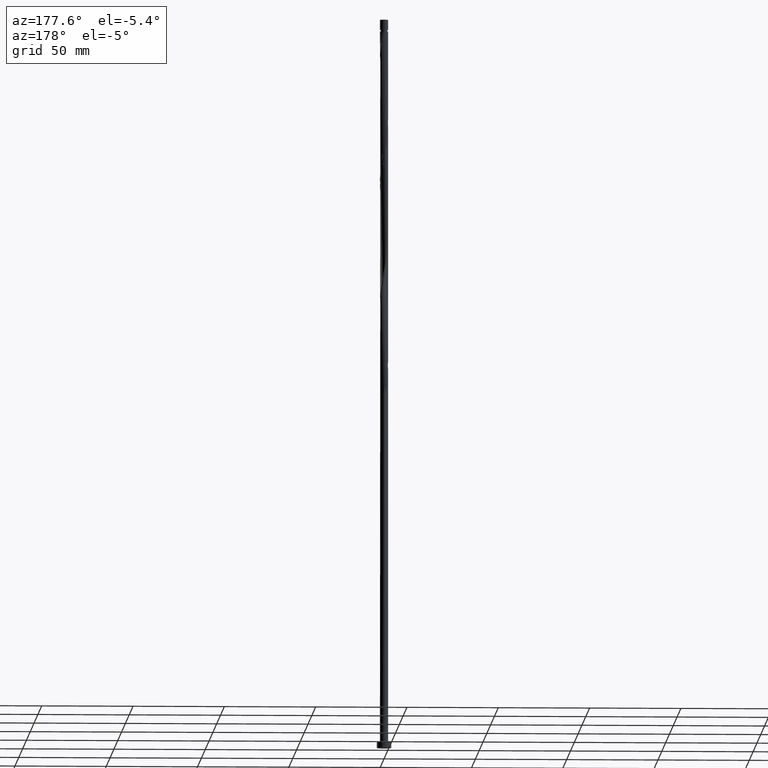
[diagram: clean part render]
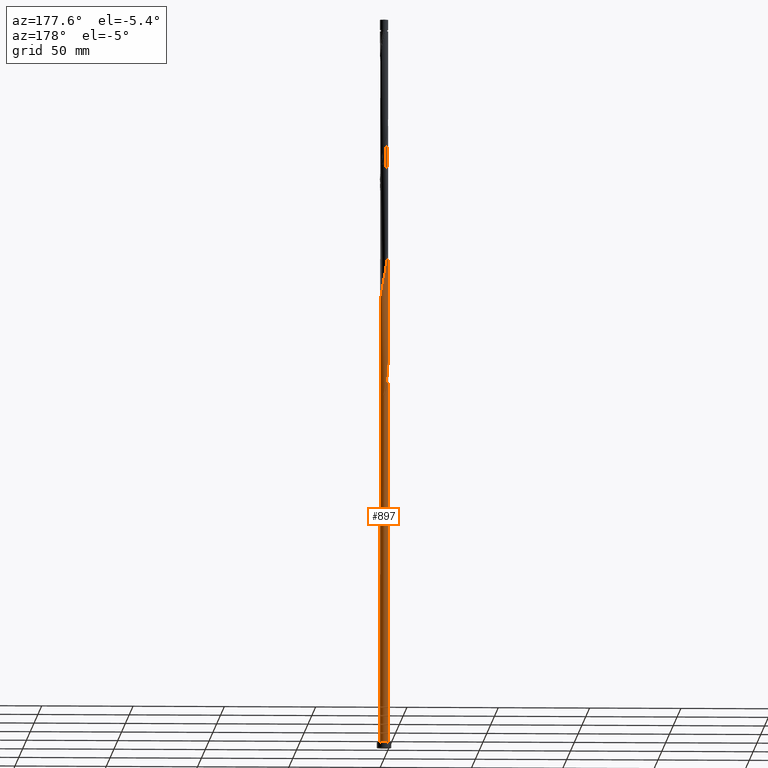
[diagram: same view with one face highlighted and labeled with its STEP entity id]
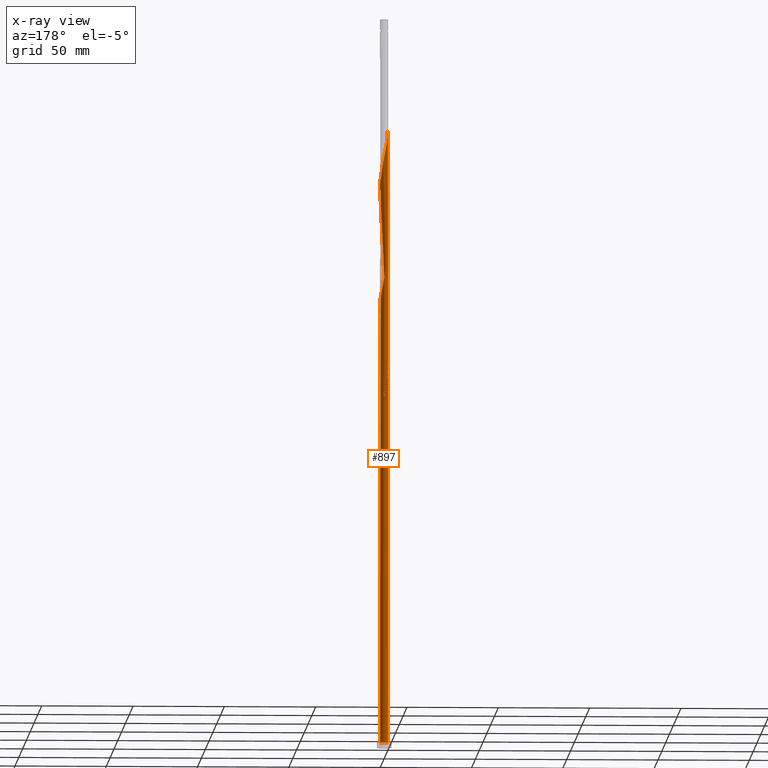
[diagram: x-ray of the same camera — body ghosted, the highlighted face saturated]
A machine part, auxiliary view. The second image highlights one B-rep face of the part: STEP entity #897.
The next image is the same camera in x-ray: the body ghosted, the highlighted face saturated — about 0% of this face is hidden behind the body in this view.
In plain terms, the highlighted cylindrical surface (bore or boss wall) has radius 2.25 mm, axis along (-0, -0, -1).
Its self-contained STEP definition (entity closure, byte-faithful):
#10 = VERTEX_POINT ( 'NONE', #1756 ) ;
#15 = VECTOR ( 'NONE', #1606, 1000.000000000000000 ) ;
#27 = CARTESIAN_POINT ( 'NONE',  ( 2.208580602260827863, -0.4905065299647383137, 239.1654255024255065 ) ) ;
#36 = CARTESIAN_POINT ( 'NONE',  ( -1.529081416802029691, -1.667433642881045008, 283.6098699468700488 ) ) ;
#44 = CARTESIAN_POINT ( 'NONE',  ( -2.146118750789926644, -0.6757768178236830403, 211.3876477246477634 ) ) ;
#46 = CARTESIAN_POINT ( 'NONE',  ( -0.4878194838710451786, -2.196481766634041044, 289.1654255024256486 ) ) ;
#61 = CARTESIAN_POINT ( 'NONE',  ( 0.7186790202281185813, 2.145209872834078713, 254.7209810579810778 ) ) ;
#65 = CYLINDRICAL_SURFACE ( 'NONE', #919, 2.250000000000000000 ) ;
#69 = CARTESIAN_POINT ( 'NONE',  ( -2.146118750789926644, -0.6757768178236830403, 278.0543143913143922 ) ) ;
#76 = CARTESIAN_POINT ( 'NONE',  ( -0.02048521978840372668, -2.249906743794114927, 224.7209810579811062 ) ) ;
#122 = CARTESIAN_POINT ( 'NONE',  ( 0.9338336956909291109, 2.047059996383163494, 320.2765366135366207 ) ) ;
#134 = DIRECTION ( 'NONE',  ( 0.000000000000000000, 0.000000000000000000, 1.000000000000000000 ) ) ;
#139 = CARTESIAN_POINT ( 'NONE',  ( -0.8964053367179171117, 2.063724175441973951, 329.1654255024255349 ) ) ;
#142 = CIRCLE ( 'NONE', #1338, 2.250000000000000000 ) ;
#150 = CARTESIAN_POINT ( 'NONE',  ( -1.658299266918881631, 1.520704948810359225, 333.6098699468700488 ) ) ;
#159 = CARTESIAN_POINT ( 'NONE',  ( -2.075091745142291444, 0.9013429879147865087, 208.0543143913144206 ) ) ;
#164 = CARTESIAN_POINT ( 'NONE',  ( 1.842346267189367559, 1.313082314401597728, 248.0543143913144490 ) ) ;
#181 = CARTESIAN_POINT ( 'NONE',  ( 1.685713841995699624, 1.490257978641320147, 249.1654255024255633 ) ) ;
#188 = EDGE_CURVE ( 'NONE', #1044, #1893, #1340, .T. ) ;
#191 = CARTESIAN_POINT ( 'NONE',  ( -0.8964053367179171117, 2.063724175441973951, 262.4987588357589061 ) ) ;
#205 = DIRECTION ( 'NONE',  ( -0.000000000000000000, -0.000000000000000000, -1.000000000000000000 ) ) ;
#207 = CARTESIAN_POINT ( 'NONE',  ( -2.075091745142295441, -0.9013429879147869528, 212.4987588357588493 ) ) ;
#210 = CARTESIAN_POINT ( 'NONE',  ( -1.113311487977034275, 1.969508178038165358, 263.6098699468699920 ) ) ;
#218 = CARTESIAN_POINT ( 'NONE',  ( -1.685713841995698958, -1.490257978641321257, 215.8320921690922205 ) ) ;
#221 = CARTESIAN_POINT ( 'NONE',  ( -1.842346267189367337, -1.313082314401598394, 281.3876477246477634 ) ) ;
#223 = CARTESIAN_POINT ( 'NONE',  ( -1.498466736209439043, 1.694999225101500251, 199.1654255024255633 ) ) ;
#236 = EDGE_CURVE ( 'NONE', #10, #1146, #356, .T. ) ;
#251 = CARTESIAN_POINT ( 'NONE',  ( -1.529081416802026583, 1.667433642881041900, 203.6098699468699920 ) ) ;
#256 = CARTESIAN_POINT ( 'NONE',  ( 0.8964053367179166676, -2.063724175441973951, 295.8320921690922205 ) ) ;
#287 = CARTESIAN_POINT ( 'NONE',  ( 2.146118750789926644, 0.6757768178236822632, 311.3876477246478203 ) ) ;
#290 = CARTESIAN_POINT ( 'NONE',  ( 1.529081416802029691, 1.667433642881044786, 250.2765366135366492 ) ) ;
#297 = CARTESIAN_POINT ( 'NONE',  ( 0.7186790202281185813, 2.145209872834078713, 321.3876477246478203 ) ) ;
#302 = CARTESIAN_POINT ( 'NONE',  ( -1.685713841995694739, 1.490257978641319481, 204.7209810579811347 ) ) ;
#306 = VERTEX_POINT ( 'NONE', #574 ) ;
#308 = CARTESIAN_POINT ( 'NONE',  ( -2.146118750789922203, 0.6757768178236830403, 209.1654255024255349 ) ) ;
#312 = CARTESIAN_POINT ( 'NONE',  ( 2.239722807784165326, 0.2148062948133293015, 242.4987588357588493 ) ) ;
#346 = CARTESIAN_POINT ( 'NONE',  ( -1.148988371153740085, -1.948910119932248275, 285.8320921690922205 ) ) ;
#356 = CIRCLE ( 'NONE', #1408, 2.250000000000000000 ) ;
#366 = CARTESIAN_POINT ( 'NONE',  ( -2.235440230695801667, 0.2555522940353270878, 273.6098699468699920 ) ) ;
#370 = CARTESIAN_POINT ( 'NONE',  ( 0.4477443466979825759, -2.205000000000003180, 226.9432032802033348 ) ) ;
#373 = CARTESIAN_POINT ( 'NONE',  ( -1.938233786377428602, 1.142694092635922365, 269.1654255024255349 ) ) ;
#375 = CARTESIAN_POINT ( 'NONE',  ( -1.938233786377428602, 1.142694092635922365, 335.8320921690922773 ) ) ;
#376 = CARTESIAN_POINT ( 'NONE',  ( -2.250000000000003109, 0.1281909092544755158, 207.5455020606305538 ) ) ;
#378 =( BOUNDED_CURVE ( )  B_SPLINE_CURVE ( 2, ( #1337, #1480, #1513, #1326, #44, #207, #634, #1789, #218, #1202, #777, #1801, #1648, #787, #1359, #657, #76, #512, #370, #434, #1152, #998, #453, #1012, #987, #1587, #1310, #1881, #889, #27, #853, #610, #312, #1761, #1457, #1772, #1473, #164, #181, #290, #1030, #1433, #1889, #61, #1220, #1206, #1652, #1823, #481, #1484, #191, #210, #1069, #782, #515, #1525, #373, #1181, #1076, #760, #366, #1516, #751, #1793, #69, #1319, #1667, #221, #934, #36, #488, #346, #908, #1821, #46, #659, #1680, #1387, #1861, #1074, #256, #1398, #1111, #1710, #1840, #1564, #1535, #941, #1378, #668, #688, #1718, #1878, #579, #287, #570, #840, #422, #1429, #588, #1007, #1139, #122, #297, #975, #870, #1576, #732, #431, #1160, #139, #1279, #964, #1441, #150, #1825, #375, #1104, #903, #1357, #1176, #640, #485 ),
 .UNSPECIFIED., .F., .T. ) 
 B_SPLINE_CURVE_WITH_KNOTS ( ( 3, 2, 2, 2, 2, 2, 2, 2, 2, 2, 2, 2, 2, 2, 2, 2, 2, 2, 2, 2, 2, 2, 2, 2, 2, 2, 2, 2, 2, 2, 2, 2, 2, 2, 2, 2, 2, 2, 2, 2, 2, 2, 2, 2, 2, 2, 2, 2, 2, 2, 2, 2, 2, 2, 2, 2, 2, 2, 2, 2, 2, 3 ),
 ( 0.05452860127731134349, 0.05833333333333334814, 0.06666666666666665186, 0.07499999999999995559, 0.08333333333333337034, 0.09166666666666667407, 0.09999999999999997780, 0.1083333333333332815, 0.1166666666666666963, 0.1250000000000000000, 0.1333333333333333037, 0.1416666666666667185, 0.1500000000000000222, 0.1583333333333333259, 0.1666666666666666297, 0.1750000000000000444, 0.1833333333333333481, 0.1916666666666666519, 0.1999999999999999556, 0.2083333333333333703, 0.2166666666666666741, 0.2249999999999999778, 0.2333333333333332815, 0.2416666666666666963, 0.2500000000000000000, 0.2583333333333333037, 0.2666666666666667185, 0.2750000000000000222, 0.2833333333333333259, 0.2916666666666666297, 0.3000000000000000444, 0.3083333333333333481, 0.3166666666666666519, 0.3249999999999999556, 0.3333333333333333703, 0.3416666666666666741, 0.3499999999999999778, 0.3583333333333332815, 0.3666666666666666963, 0.3750000000000000000, 0.3833333333333333037, 0.3916666666666667185, 0.4000000000000000222, 0.4083333333333333259, 0.4166666666666666297, 0.4250000000000000444, 0.4333333333333333481, 0.4416666666666666519, 0.4499999999999999556, 0.4583333333333333703, 0.4666666666666666741, 0.4749999999999999778, 0.4833333333333332815, 0.4916666666666666963, 0.5000000000000000000, 0.5083333333333333037, 0.5166666666666666075, 0.5250000000000000222, 0.5333333333333333259, 0.5416666666666667407, 0.5500000000000000444, 0.5545286012773110729 ),
 .UNSPECIFIED. ) 
 CURVE ( )  GEOMETRIC_REPRESENTATION_ITEM ( )  RATIONAL_B_SPLINE_CURVE ( ( 0.9066196499552687804, 0.9068171577856813936, 0.9090909090909804480, 0.9041108139712286107, 0.9090909090909804480, 0.9041108139712286107, 0.9090909090909804480, 0.9041108139712286107, 0.9090909090909804480, 0.9041108139712286107, 0.9090909090909804480, 0.9041108139712286107, 0.9090909090909804480, 0.9041108139712286107, 0.9090909090909804480, 0.9041108139712286107, 0.9090909090909804480, 0.9041108139712286107, 0.9090909090909804480, 0.9041108139712286107, 0.9090909090909804480, 0.9041108139712286107, 0.9090909090909804480, 0.9041108139712286107, 0.9090909090909804480, 0.9041108139712286107, 0.9090909090909804480, 0.9041108139712286107, 0.9090909090909804480, 0.9041108139712286107, 0.9090909090909804480, 0.9041108139712286107, 0.9090909090909804480, 0.9041108139712286107, 0.9090909090909804480, 0.9041108139712286107, 0.9090909090909804480, 0.9041108139712286107, 0.9090909090909804480, 0.9041108139712286107, 0.9090909090909804480, 0.9041108139712286107, 0.9090909090909804480, 0.9041108139712286107, 0.9090909090909804480, 0.9041108139712286107, 0.9090909090909804480, 0.9041108139712286107, 0.9090909090909804480, 0.9041108139712286107, 0.9090909090909804480, 0.9041108139712286107, 0.9090909090909804480, 0.9041108139712286107, 0.9090909090909804480, 0.9041108139712286107, 0.9090909090909804480, 0.9041108139712286107, 0.9090909090909804480, 0.9041108139712286107, 0.9090909090909804480, 0.9041108139712286107, 0.9090909090909804480, 0.9041108139712286107, 0.9090909090909804480, 0.9041108139712286107, 0.9090909090909804480, 0.9041108139712286107, 0.9090909090909804480, 0.9041108139712286107, 0.9090909090909804480, 0.9041108139712286107, 0.9090909090909804480, 0.9041108139712286107, 0.9090909090909804480, 0.9041108139712286107, 0.9090909090909804480, 0.9041108139712286107, 0.9090909090909804480, 0.9041108139712286107, 0.9090909090909804480, 0.9041108139712286107, 0.9090909090909804480, 0.9041108139712286107, 0.9090909090909804480, 0.9041108139712286107, 0.9090909090909804480, 0.9041108139712286107, 0.9090909090909804480, 0.9041108139712286107, 0.9090909090909804480, 0.9041108139712286107, 0.9090909090909804480, 0.9041108139712286107, 0.9090909090909804480, 0.9041108139712286107, 0.9090909090909804480, 0.9041108139712286107, 0.9090909090909804480, 0.9041108139712286107, 0.9090909090909804480, 0.9041108139712286107, 0.9090909090909804480, 0.9041108139712286107, 0.9090909090909804480, 0.9041108139712286107, 0.9090909090909804480, 0.9041108139712286107, 0.9090909090909804480, 0.9041108139712286107, 0.9090909090909804480, 0.9041108139712286107, 0.9090909090909804480, 0.9041108139712286107, 0.9090909090909804480, 0.9041108139712286107, 0.9090909090909804480, 0.9041108139712286107, 0.9090909090909804480, 0.9041108139712286107, 0.9090909090909804480, 0.9063845652765278871, 0.9066196499552687804 ) ) 
 REPRESENTATION_ITEM ( '' )  );
#404 = EDGE_CURVE ( 'NONE', #1044, #606, #537, .T. ) ;
#422 = CARTESIAN_POINT ( 'NONE',  ( 1.842346267189367559, 1.313082314401597728, 314.7209810579810210 ) ) ;
#431 = CARTESIAN_POINT ( 'NONE',  ( -0.4477443466979822984, 2.205000000000003180, 326.9432032802033632 ) ) ;
#434 = CARTESIAN_POINT ( 'NONE',  ( 0.6794991854587989488, -2.157940172845781657, 228.0543143913144206 ) ) ;
#437 = CARTESIAN_POINT ( 'NONE',  ( -0.4878194838710431802, 2.196481766634038379, 198.0543143913144206 ) ) ;
#453 = CARTESIAN_POINT ( 'NONE',  ( 1.305889112093235882, -1.832253701569833249, 231.3876477246477634 ) ) ;
#456 = CARTESIAN_POINT ( 'NONE',  ( -2.250000000000003109, 2.234788105389345572E-15, 208.1510933700151043 ) ) ;
#481 = CARTESIAN_POINT ( 'NONE',  ( -0.4477443466979822984, 2.205000000000003180, 260.2765366135367344 ) ) ;
#485 = CARTESIAN_POINT ( 'NONE',  ( -2.250000000000002665, 7.773176018745549002E-16, 341.4844267033483902 ) ) ;
#488 = CARTESIAN_POINT ( 'NONE',  ( -1.339034893977885110, -1.808171881406646087, 284.7209810579810210 ) ) ;
#499 = CARTESIAN_POINT ( 'NONE',  ( -0.8964053367179171117, 2.063724175441973951, 195.8320921690921921 ) ) ;
#512 = CARTESIAN_POINT ( 'NONE',  ( 0.2159895079371652871, -2.252059827154224259, 225.8320921690921637 ) ) ;
#515 = CARTESIAN_POINT ( 'NONE',  ( -1.658299266918881631, 1.520704948810359225, 266.9432032802032495 ) ) ;
#537 = CIRCLE ( 'NONE', #1400, 2.250000000000000000 ) ;
#570 = CARTESIAN_POINT ( 'NONE',  ( 2.075091745142295885, 0.9013429879147859536, 312.4987588357588493 ) ) ;
#574 = CARTESIAN_POINT ( 'NONE',  ( -2.250000000000002665, 7.773176018745549002E-16, 341.4844267033483902 ) ) ;
#579 = CARTESIAN_POINT ( 'NONE',  ( 2.217145756437556514, 0.4502106477325789058, 310.2765366135366207 ) ) ;
#588 = CARTESIAN_POINT ( 'NONE',  ( 1.529081416802029691, 1.667433642881044786, 316.9432032802033063 ) ) ;
#606 = VERTEX_POINT ( 'NONE', #999 ) ;
#610 = CARTESIAN_POINT ( 'NONE',  ( 2.262299859130773694, -0.02059805810591844311, 241.3876477246477350 ) ) ;
#621 = DIRECTION ( 'NONE',  ( 1.000000000000000000, 0.000000000000000000, 0.000000000000000000 ) ) ;
#622 = ORIENTED_EDGE ( 'NONE', *, *, #1690, .F. ) ;
#632 = CARTESIAN_POINT ( 'NONE',  ( -1.818131797628323332, 1.346410672519218199, 201.3876477246477634 ) ) ;
#634 = CARTESIAN_POINT ( 'NONE',  ( -1.958719006165831056, -1.107212651158192784, 213.6098699468699920 ) ) ;
#640 = CARTESIAN_POINT ( 'NONE',  ( -2.250000000000002220, 0.1281909092544831485, 340.8788353939638114 ) ) ;
#657 = CARTESIAN_POINT ( 'NONE',  ( -0.2569599475139717204, -2.247753660434005152, 223.6098699468699351 ) ) ;
#659 = CARTESIAN_POINT ( 'NONE',  ( -0.2569599475139717204, -2.247753660434005152, 290.2765366135365639 ) ) ;
#668 = CARTESIAN_POINT ( 'NONE',  ( 2.208580602260827863, -0.4905065299647383137, 305.8320921690921068 ) ) ;
#675 = EDGE_CURVE ( 'NONE', #306, #1268, #1755, .T. ) ;
#688 = CARTESIAN_POINT ( 'NONE',  ( 2.235440230695801667, -0.2555522940353273098, 306.9432032802033632 ) ) ;
#704 = CARTESIAN_POINT ( 'NONE',  ( -1.339034893977881335, 1.808171881406644088, 202.4987588357588493 ) ) ;
#732 = CARTESIAN_POINT ( 'NONE',  ( -0.2159895079371639826, 2.252059827154224259, 325.8320921690922773 ) ) ;
#751 = CARTESIAN_POINT ( 'NONE',  ( -2.239722807784164438, -0.2148062948133304950, 275.8320921690922773 ) ) ;
#760 = CARTESIAN_POINT ( 'NONE',  ( -2.208580602260827863, 0.4905065299647369814, 272.4987588357588493 ) ) ;
#777 = CARTESIAN_POINT ( 'NONE',  ( -1.339034893977885110, -1.808171881406646087, 218.0543143913144206 ) ) ;
#782 = CARTESIAN_POINT ( 'NONE',  ( -1.498466736209439043, 1.694999225101500251, 265.8320921690922773 ) ) ;
#787 = CARTESIAN_POINT ( 'NONE',  ( -0.7186790202281182482, -2.145209872834078713, 221.3876477246477918 ) ) ;
#817 = CARTESIAN_POINT ( 'NONE',  ( 0.2159895079371659254, 2.252059827154219818, 194.7209810579810778 ) ) ;
#823 = CARTESIAN_POINT ( 'NONE',  ( -1.958719006165827281, 1.107212651158191452, 206.9432032802033632 ) ) ;
#840 = CARTESIAN_POINT ( 'NONE',  ( 1.958719006165831056, 1.107212651158192784, 313.6098699468699351 ) ) ;
#848 = ORIENTED_EDGE ( 'NONE', *, *, #1505, .F. ) ;
#853 = CARTESIAN_POINT ( 'NONE',  ( 2.235440230695801667, -0.2555522940353273098, 240.2765366135366776 ) ) ;
#855 = CARTESIAN_POINT ( 'NONE',  ( 0.4477443466979830200, 2.204999999999999183, 193.6098699468699635 ) ) ;
#870 = CARTESIAN_POINT ( 'NONE',  ( 0.2569599475139721645, 2.247753660434005152, 323.6098699468699920 ) ) ;
#875 = CARTESIAN_POINT ( 'NONE',  ( 0.000000000000000000, 0.000000000000000000, 193.6098699468700204 ) ) ;
#885 = ORIENTED_EDGE ( 'NONE', *, *, #675, .F. ) ;
#889 = CARTESIAN_POINT ( 'NONE',  ( 2.133458188693681201, -0.7147420213586823667, 238.0543143913144206 ) ) ;
#897 = ADVANCED_FACE ( 'NONE', ( #1498 ), #65, .T. ) ;
#902 = EDGE_LOOP ( 'NONE', ( #885, #1599, #1238, #1438, #1323, #848, #1258, #1385, #622 ) ) ;
#903 = CARTESIAN_POINT ( 'NONE',  ( -2.133458188693681201, 0.7147420213586817006, 338.0543143913144490 ) ) ;
#904 = DIRECTION ( 'NONE',  ( -0.000000000000000000, -0.000000000000000000, -1.000000000000000000 ) ) ;
#908 = CARTESIAN_POINT ( 'NONE',  ( -0.9338336956909288888, -2.047059996383163494, 286.9432032802031927 ) ) ;
#912 = CARTESIAN_POINT ( 'NONE',  ( -1.305889112093236770, 1.832253701569832804, 198.0543143913143922 ) ) ;
#919 = AXIS2_PLACEMENT_3D ( 'NONE', #1529, #205, #1215 ) ;
#930 = CARTESIAN_POINT ( 'NONE',  ( -0.6794991854587996150, 2.157940172845781213, 194.7209810579810778 ) ) ;
#934 = CARTESIAN_POINT ( 'NONE',  ( -1.685713841995698958, -1.490257978641321257, 282.4987588357588493 ) ) ;
#941 = CARTESIAN_POINT ( 'NONE',  ( 2.058335775126532319, -0.9389775127526261977, 303.6098699468699351 ) ) ;
#953 = CARTESIAN_POINT ( 'NONE',  ( -1.148988371153736976, 1.948910119932245166, 201.3876477246477634 ) ) ;
#964 = CARTESIAN_POINT ( 'NONE',  ( -1.305889112093236770, 1.832253701569832804, 331.3876477246478203 ) ) ;
#970 = CARTESIAN_POINT ( 'NONE',  ( -0.2569599475139706102, 2.247753660434001155, 196.9432032802033063 ) ) ;
#975 = CARTESIAN_POINT ( 'NONE',  ( 0.4878194838710463443, 2.196481766634041044, 322.4987588357588493 ) ) ;
#987 = CARTESIAN_POINT ( 'NONE',  ( 1.658299266918881409, -1.520704948810359447, 233.6098699468699920 ) ) ;
#989 = CARTESIAN_POINT ( 'NONE',  ( -0.02048521978840224869, 2.249906743794110930, 195.8320921690922205 ) ) ;
#998 = CARTESIAN_POINT ( 'NONE',  ( 1.113311487977034053, -1.969508178038165802, 230.2765366135366492 ) ) ;
#999 = CARTESIAN_POINT ( 'NONE',  ( 0.4477443466979829645, 2.204999999999999183, 193.6098699468699635 ) ) ;
#1005 = CARTESIAN_POINT ( 'NONE',  ( -2.239722807784161773, 0.2148062948133313277, 211.3876477246477634 ) ) ;
#1007 = CARTESIAN_POINT ( 'NONE',  ( 1.339034893977885332, 1.808171881406645642, 318.0543143913143922 ) ) ;
#1012 = CARTESIAN_POINT ( 'NONE',  ( 1.498466736209437933, -1.694999225101500251, 232.4987588357588493 ) ) ;
#1013 = CARTESIAN_POINT ( 'NONE',  ( -2.250000000000000000, 0.000000000000000000, 400.0000000000000000 ) ) ;
#1030 = CARTESIAN_POINT ( 'NONE',  ( 1.339034893977885332, 1.808171881406645642, 251.3876477246477918 ) ) ;
#1044 = VERTEX_POINT ( 'NONE', #1570 ) ;
#1061 = CARTESIAN_POINT ( 'NONE',  ( -2.058335775126532319, 0.9389775127526257537, 203.6098699468699920 ) ) ;
#1069 = CARTESIAN_POINT ( 'NONE',  ( -1.305889112093236770, 1.832253701569832804, 264.7209810579811915 ) ) ;
#1074 = CARTESIAN_POINT ( 'NONE',  ( 0.6794991854587989488, -2.157940172845781657, 294.7209810579811347 ) ) ;
#1076 = CARTESIAN_POINT ( 'NONE',  ( -2.133458188693681201, 0.7147420213586817006, 271.3876477246477066 ) ) ;
#1078 = CARTESIAN_POINT ( 'NONE',  ( -2.208580602260827863, 0.4905065299647369814, 205.8320921690922205 ) ) ;
#1104 = CARTESIAN_POINT ( 'NONE',  ( -2.058335775126532319, 0.9389775127526257537, 336.9432032802032495 ) ) ;
#1111 = CARTESIAN_POINT ( 'NONE',  ( 1.305889112093235882, -1.832253701569833249, 298.0543143913143922 ) ) ;
#1133 = CARTESIAN_POINT ( 'NONE',  ( -2.250000000000003109, 2.234788105389345572E-15, 208.1510933700150758 ) ) ;
#1139 = CARTESIAN_POINT ( 'NONE',  ( 1.148988371153740751, 1.948910119932247387, 319.1654255024255349 ) ) ;
#1146 = VERTEX_POINT ( 'NONE', #1819 ) ;
#1152 = CARTESIAN_POINT ( 'NONE',  ( 0.8964053367179166676, -2.063724175441973951, 229.1654255024255349 ) ) ;
#1160 = CARTESIAN_POINT ( 'NONE',  ( -0.6794991854587996150, 2.157940172845781213, 328.0543143913143354 ) ) ;
#1176 = CARTESIAN_POINT ( 'NONE',  ( -2.235440230695801667, 0.2555522940353270878, 340.2765366135365639 ) ) ;
#1181 = CARTESIAN_POINT ( 'NONE',  ( -2.058335775126532319, 0.9389775127526257537, 270.2765366135366776 ) ) ;
#1184 = EDGE_CURVE ( 'NONE', #1893, #306, #378, .T. ) ;
#1197 = CARTESIAN_POINT ( 'NONE',  ( -1.658299266918881631, 1.520704948810359225, 200.2765366135367060 ) ) ;
#1202 = CARTESIAN_POINT ( 'NONE',  ( -1.529081416802029691, -1.667433642881045008, 216.9432032802033063 ) ) ;
#1206 = CARTESIAN_POINT ( 'NONE',  ( 0.2569599475139721645, 2.247753660434005152, 256.9432032802033063 ) ) ;
#1209 = CARTESIAN_POINT ( 'NONE',  ( -2.250000000000000000, 0.000000000000000000, 400.0000000000000000 ) ) ;
#1215 = DIRECTION ( 'NONE',  ( -1.000000000000000000, 0.000000000000000000, 0.000000000000000000 ) ) ;
#1220 = CARTESIAN_POINT ( 'NONE',  ( 0.4878194838710463443, 2.196481766634041044, 255.8320921690921921 ) ) ;
#1238 = ORIENTED_EDGE ( 'NONE', *, *, #1505, .T. ) ;
#1258 = ORIENTED_EDGE ( 'NONE', *, *, #188, .F. ) ;
#1268 = VERTEX_POINT ( 'NONE', #1658 ) ;
#1279 = CARTESIAN_POINT ( 'NONE',  ( -1.113311487977034275, 1.969508178038165358, 330.2765366135366207 ) ) ;
#1302 = DIRECTION ( 'NONE',  ( -2.054325274013051950E-29, -3.083952846180992213E-14, -1.000000000000000000 ) ) ;
#1310 = CARTESIAN_POINT ( 'NONE',  ( 1.938233786377428158, -1.142694092635922587, 235.8320921690922489 ) ) ;
#1319 = CARTESIAN_POINT ( 'NONE',  ( -2.075091745142295441, -0.9013429879147869528, 279.1654255024255349 ) ) ;
#1323 = ORIENTED_EDGE ( 'NONE', *, *, #236, .T. ) ;
#1325 =( BOUNDED_CURVE ( )  B_SPLINE_CURVE ( 2, ( #1894, #1749, #1005, #1451, #308, #159, #823, #1815, #302, #251, #704, #953, #1416, #1734, #437, #970, #989, #817, #855 ),
 .UNSPECIFIED., .F., .T. ) 
 B_SPLINE_CURVE_WITH_KNOTS ( ( 3, 2, 2, 2, 2, 2, 2, 2, 2, 3 ),
 ( 0.9295286012773114059, 0.9333333333333333481, 0.9416666666666666519, 0.9499999999999999556, 0.9583333333333333703, 0.9666666666666666741, 0.9749999999999999778, 0.9833333333333332815, 0.9916666666666666963, 1.000000000000000000 ),
 .UNSPECIFIED. ) 
 CURVE ( )  GEOMETRIC_REPRESENTATION_ITEM ( )  RATIONAL_B_SPLINE_CURVE ( ( 0.9066196499552608978, 0.9068171577856736221, 0.9090909090909725654, 0.9041108139712207281, 0.9090909090909725654, 0.9041108139712207281, 0.9090909090909725654, 0.9041108139712207281, 0.9090909090909725654, 0.9041108139712207281, 0.9090909090909725654, 0.9041108139712207281, 0.9090909090909725654, 0.9041108139712207281, 0.9090909090909725654, 0.9041108139712207281, 0.9090909090909725654, 0.9041108139712207281, 0.9090909090909725654 ) ) 
 REPRESENTATION_ITEM ( '' )  );
#1326 = CARTESIAN_POINT ( 'NONE',  ( -2.217145756437556514, -0.4502106477325790723, 210.2765366135366207 ) ) ;
#1337 = CARTESIAN_POINT ( 'NONE',  ( -2.250000000000003109, 2.234788105389345572E-15, 208.1510933700150758 ) ) ;
#1338 = AXIS2_PLACEMENT_3D ( 'NONE', #1628, #1477, #621 ) ;
#1340 =( BOUNDED_CURVE ( )  B_SPLINE_CURVE ( 2, ( #1809, #930, #499, #1520, #912, #223, #1197, #632, #1497, #1061, #1364, #1078, #1675, #376, #1133 ),
 .UNSPECIFIED., .F., .T. ) 
 B_SPLINE_CURVE_WITH_KNOTS ( ( 3, 2, 2, 2, 2, 2, 2, 3 ),
 ( 0.000000000000000000, 0.008333333333333303727, 0.01666666666666671848, 0.02500000000000002220, 0.03333333333333332593, 0.04166666666666662966, 0.05000000000000004441, 0.05452860127731134349 ),
 .UNSPECIFIED. ) 
 CURVE ( )  GEOMETRIC_REPRESENTATION_ITEM ( )  RATIONAL_B_SPLINE_CURVE ( ( 0.9090909090909804480, 0.9041108139712286107, 0.9090909090909804480, 0.9041108139712286107, 0.9090909090909804480, 0.9041108139712286107, 0.9090909090909804480, 0.9041108139712286107, 0.9090909090909804480, 0.9041108139712286107, 0.9090909090909804480, 0.9041108139712286107, 0.9090909090909804480, 0.9063845652765276650, 0.9066196499552687804 ) ) 
 REPRESENTATION_ITEM ( '' )  );
#1357 = CARTESIAN_POINT ( 'NONE',  ( -2.208580602260827863, 0.4905065299647369814, 339.1654255024256486 ) ) ;
#1359 = CARTESIAN_POINT ( 'NONE',  ( -0.4878194838710451786, -2.196481766634041044, 222.4987588357589345 ) ) ;
#1364 = CARTESIAN_POINT ( 'NONE',  ( -2.133458188693681201, 0.7147420213586817006, 204.7209810579811347 ) ) ;
#1378 = CARTESIAN_POINT ( 'NONE',  ( 2.133458188693681201, -0.7147420213586823667, 304.7209810579811915 ) ) ;
#1383 = CARTESIAN_POINT ( 'NONE',  ( 0.000000000000000000, 0.000000000000000000, 3.000000000000000000 ) ) ;
#1385 = ORIENTED_EDGE ( 'NONE', *, *, #404, .T. ) ;
#1387 = CARTESIAN_POINT ( 'NONE',  ( 0.2159895079371652871, -2.252059827154224259, 292.4987588357588493 ) ) ;
#1398 = CARTESIAN_POINT ( 'NONE',  ( 1.113311487977034053, -1.969508178038165802, 296.9432032802032495 ) ) ;
#1400 = AXIS2_PLACEMENT_3D ( 'NONE', #875, #1302, #1744 ) ;
#1408 = AXIS2_PLACEMENT_3D ( 'NONE', #1383, #134, #1550 ) ;
#1416 = CARTESIAN_POINT ( 'NONE',  ( -0.9338336956909263353, 2.047059996383160829, 200.2765366135366776 ) ) ;
#1429 = CARTESIAN_POINT ( 'NONE',  ( 1.685713841995699624, 1.490257978641320147, 315.8320921690922205 ) ) ;
#1433 = CARTESIAN_POINT ( 'NONE',  ( 1.148988371153740751, 1.948910119932247387, 252.4987588357589630 ) ) ;
#1438 = ORIENTED_EDGE ( 'NONE', *, *, #1574, .T. ) ;
#1441 = CARTESIAN_POINT ( 'NONE',  ( -1.498466736209439043, 1.694999225101500251, 332.4987588357588493 ) ) ;
#1451 = CARTESIAN_POINT ( 'NONE',  ( -2.217145756437552517, 0.4502106477325790168, 210.2765366135365923 ) ) ;
#1457 = CARTESIAN_POINT ( 'NONE',  ( 2.146118750789926644, 0.6757768178236822632, 244.7209810579811062 ) ) ;
#1473 = CARTESIAN_POINT ( 'NONE',  ( 1.958719006165831056, 1.107212651158192784, 246.9432032802033348 ) ) ;
#1477 = DIRECTION ( 'NONE',  ( 0.000000000000000000, 0.000000000000000000, 1.000000000000000000 ) ) ;
#1479 = LINE ( 'NONE', #1209, #1850 ) ;
#1480 = CARTESIAN_POINT ( 'NONE',  ( -2.250000000000003553, -0.1076489983951845614, 208.6596418955791989 ) ) ;
#1484 = CARTESIAN_POINT ( 'NONE',  ( -0.6794991854587996150, 2.157940172845781213, 261.3876477246476497 ) ) ;
#1497 = CARTESIAN_POINT ( 'NONE',  ( -1.938233786377428602, 1.142694092635922365, 202.4987588357589061 ) ) ;
#1498 = FACE_OUTER_BOUND ( 'NONE', #902, .T. ) ;
#1505 = EDGE_CURVE ( 'NONE', #1893, #1146, #1479, .T. ) ;
#1513 = CARTESIAN_POINT ( 'NONE',  ( -2.239722807784164438, -0.2148062948133304950, 209.1654255024255633 ) ) ;
#1516 = CARTESIAN_POINT ( 'NONE',  ( -2.262299859130773250, 0.02059805810591770411, 274.7209810579811347 ) ) ;
#1520 = CARTESIAN_POINT ( 'NONE',  ( -1.113311487977034275, 1.969508178038165358, 196.9432032802033348 ) ) ;
#1525 = CARTESIAN_POINT ( 'NONE',  ( -1.818131797628323332, 1.346410672519218199, 268.0543143913143922 ) ) ;
#1529 = CARTESIAN_POINT ( 'NONE',  ( 0.000000000000000000, 0.000000000000000000, 400.0000000000000000 ) ) ;
#1535 = CARTESIAN_POINT ( 'NONE',  ( 1.938233786377428158, -1.142694092635922587, 302.4987588357587924 ) ) ;
#1550 = DIRECTION ( 'NONE',  ( 1.000000000000000000, 0.000000000000000000, 0.000000000000000000 ) ) ;
#1564 = CARTESIAN_POINT ( 'NONE',  ( 1.818131797628322888, -1.346410672519218421, 301.3876477246478203 ) ) ;
#1570 = CARTESIAN_POINT ( 'NONE',  ( -0.4477443466979822428, 2.205000000000003180, 193.6098699468699635 ) ) ;
#1574 = EDGE_CURVE ( 'NONE', #1146, #10, #142, .T. ) ;
#1576 = CARTESIAN_POINT ( 'NONE',  ( 0.02048521978840399382, 2.249906743794114927, 324.7209810579811347 ) ) ;
#1587 = CARTESIAN_POINT ( 'NONE',  ( 1.818131797628322888, -1.346410672519218421, 234.7209810579810778 ) ) ;
#1599 = ORIENTED_EDGE ( 'NONE', *, *, #1184, .F. ) ;
#1606 = DIRECTION ( 'NONE',  ( -0.000000000000000000, -0.000000000000000000, -1.000000000000000000 ) ) ;
#1628 = CARTESIAN_POINT ( 'NONE',  ( 0.000000000000000000, 0.000000000000000000, 3.000000000000000000 ) ) ;
#1648 = CARTESIAN_POINT ( 'NONE',  ( -0.9338336956909288888, -2.047059996383163494, 220.2765366135366492 ) ) ;
#1652 = CARTESIAN_POINT ( 'NONE',  ( 0.02048521978840399382, 2.249906743794114927, 258.0543143913144490 ) ) ;
#1658 = CARTESIAN_POINT ( 'NONE',  ( -2.249999999999999556, -1.091234325708519361E-15, 212.4019798570581656 ) ) ;
#1667 = CARTESIAN_POINT ( 'NONE',  ( -1.958719006165831056, -1.107212651158192784, 280.2765366135366776 ) ) ;
#1675 = CARTESIAN_POINT ( 'NONE',  ( -2.235440230695801667, 0.2555522940353270878, 206.9432032802033348 ) ) ;
#1680 = CARTESIAN_POINT ( 'NONE',  ( -0.02048521978840372668, -2.249906743794114927, 291.3876477246478771 ) ) ;
#1690 = EDGE_CURVE ( 'NONE', #1268, #606, #1325, .T. ) ;
#1710 = CARTESIAN_POINT ( 'NONE',  ( 1.498466736209437933, -1.694999225101500251, 299.1654255024255349 ) ) ;
#1718 = CARTESIAN_POINT ( 'NONE',  ( 2.262299859130773694, -0.02059805810591844311, 308.0543143913145059 ) ) ;
#1734 = CARTESIAN_POINT ( 'NONE',  ( -0.7186790202281158058, 2.145209872834075160, 199.1654255024255349 ) ) ;
#1744 = DIRECTION ( 'NONE',  ( 0.000000000000000000, 1.000000000000000000, -3.700743415417188258E-14 ) ) ;
#1749 = CARTESIAN_POINT ( 'NONE',  ( -2.250000000000000444, 0.1076489983951873508, 211.8934313314940994 ) ) ;
#1755 = LINE ( 'NONE', #1013, #15 ) ;
#1756 = CARTESIAN_POINT ( 'NONE',  ( 2.250000000000000000, 0.000000000000000000, 3.000000000000000000 ) ) ;
#1761 = CARTESIAN_POINT ( 'NONE',  ( 2.217145756437556514, 0.4502106477325789058, 243.6098699468699920 ) ) ;
#1772 = CARTESIAN_POINT ( 'NONE',  ( 2.075091745142295885, 0.9013429879147859536, 245.8320921690922205 ) ) ;
#1789 = CARTESIAN_POINT ( 'NONE',  ( -1.842346267189367337, -1.313082314401598394, 214.7209810579810210 ) ) ;
#1793 = CARTESIAN_POINT ( 'NONE',  ( -2.217145756437556514, -0.4502106477325790723, 276.9432032802033063 ) ) ;
#1801 = CARTESIAN_POINT ( 'NONE',  ( -1.148988371153740085, -1.948910119932248275, 219.1654255024254496 ) ) ;
#1809 = CARTESIAN_POINT ( 'NONE',  ( -0.4477443466979822428, 2.205000000000003180, 193.6098699468699635 ) ) ;
#1815 = CARTESIAN_POINT ( 'NONE',  ( -1.842346267189362896, 1.313082314401596618, 205.8320921690922205 ) ) ;
#1819 = CARTESIAN_POINT ( 'NONE',  ( -2.250000000000000000, 0.000000000000000000, 3.000000000000000000 ) ) ;
#1821 = CARTESIAN_POINT ( 'NONE',  ( -0.7186790202281182482, -2.145209872834078713, 288.0543143913143354 ) ) ;
#1823 = CARTESIAN_POINT ( 'NONE',  ( -0.2159895079371639826, 2.252059827154224259, 259.1654255024255349 ) ) ;
#1825 = CARTESIAN_POINT ( 'NONE',  ( -1.818131797628323332, 1.346410672519218199, 334.7209810579810778 ) ) ;
#1840 = CARTESIAN_POINT ( 'NONE',  ( 1.658299266918881409, -1.520704948810359447, 300.2765366135366207 ) ) ;
#1850 = VECTOR ( 'NONE', #904, 1000.000000000000000 ) ;
#1861 = CARTESIAN_POINT ( 'NONE',  ( 0.4477443466979825759, -2.205000000000003180, 293.6098699468700488 ) ) ;
#1878 = CARTESIAN_POINT ( 'NONE',  ( 2.239722807784165326, 0.2148062948133293015, 309.1654255024255917 ) ) ;
#1881 = CARTESIAN_POINT ( 'NONE',  ( 2.058335775126532319, -0.9389775127526261977, 236.9432032802033063 ) ) ;
#1889 = CARTESIAN_POINT ( 'NONE',  ( 0.9338336956909291109, 2.047059996383163494, 253.6098699468700204 ) ) ;
#1893 = VERTEX_POINT ( 'NONE', #456 ) ;
#1894 = CARTESIAN_POINT ( 'NONE',  ( -2.249999999999999556, -1.091234325708519361E-15, 212.4019798570581656 ) ) ;